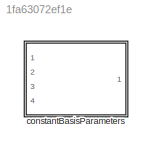
MODEL slx_1fa63072ef1e
KIND library
CONFIG AbsTol = auto
CONFIG EnableMultiTasking = off
CONFIG FixedStep = auto
CONFIG MaxStep = auto
CONFIG MinStep = auto
CONFIG RelTol = 1e-3
CONFIG SampleTimeConstraint = Unconstrained
CONFIG SolverName = VariableStepAuto
CONFIG StartTime = 0.0
CONFIG StopTime = 10.0
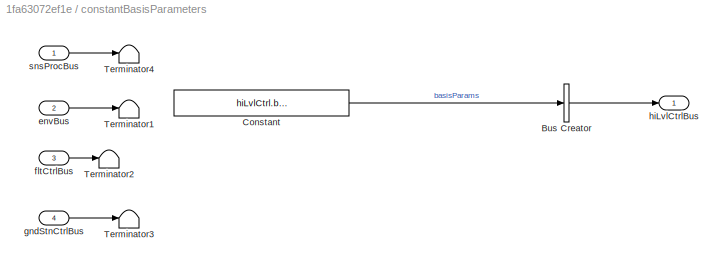
BLOCK [SubSystem] constantBasisParameters
  InitFcn = initializeBussesFromBlock(gcb)
  LoadFcn = initializeBussesFromBlock(gcb)
  Ports = [4, 1]
  RequestExecContextInheritance = off
  StartFcn = initializeBussesFromBlock(gcb)
  VariantControl = strcmpi(HILVLCONTROLLER,'constantBasisParameters')
BLOCK [BusCreator] constantBasisParameters/Bus Creator
  DisplayOption = bar
  InheritFromInputs = on
  Inputs = 1
  OutDataTypeStr = Bus: hiLvlCtrlBus
  Ports = [1, 1]
BLOCK [Constant] constantBasisParameters/Constant
  Value = hiLvlCtrl.basisParams.Value
BLOCK [Terminator] constantBasisParameters/Terminator1
BLOCK [Terminator] constantBasisParameters/Terminator2
BLOCK [Terminator] constantBasisParameters/Terminator3
BLOCK [Terminator] constantBasisParameters/Terminator4
BLOCK [Inport] constantBasisParameters/envBus
  OutDataTypeStr = Bus: envBus
  Port = 2
BLOCK [Inport] constantBasisParameters/fltCtrlBus
  OutDataTypeStr = Bus: fltCtrlBus
  Port = 3
BLOCK [Inport] constantBasisParameters/gndStnCtrlBus
  OutDataTypeStr = Bus: gndStnCtrlBus
  Port = 4
BLOCK [Outport] constantBasisParameters/hiLvlCtrlBus
  OutDataTypeStr = Bus: hiLvlCtrlBus
  VectorParamsAs1DForOutWhenUnconnected = off
BLOCK [Inport] constantBasisParameters/snsProcBus
  OutDataTypeStr = Bus: sensorsProcessingBus
LINE constantBasisParameters/Bus Creator:1 -> constantBasisParameters/hiLvlCtrlBus:1
LINE constantBasisParameters/Constant:1 -> constantBasisParameters/Bus Creator:1
LINE constantBasisParameters/envBus:1 -> constantBasisParameters/Terminator1:1
LINE constantBasisParameters/fltCtrlBus:1 -> constantBasisParameters/Terminator2:1
LINE constantBasisParameters/gndStnCtrlBus:1 -> constantBasisParameters/Terminator3:1
LINE constantBasisParameters/snsProcBus:1 -> constantBasisParameters/Terminator4:1
